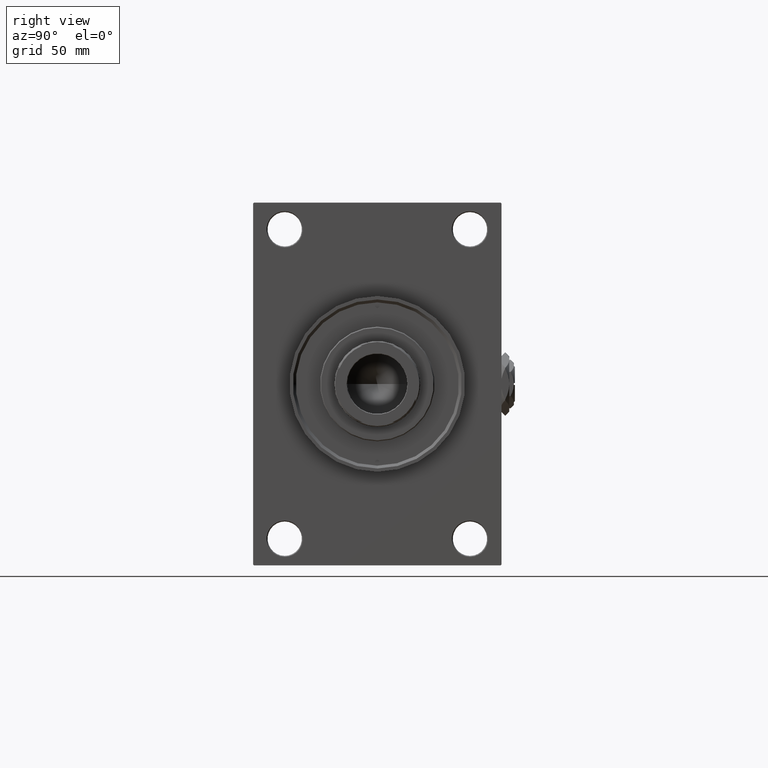
[diagram: clean part render]
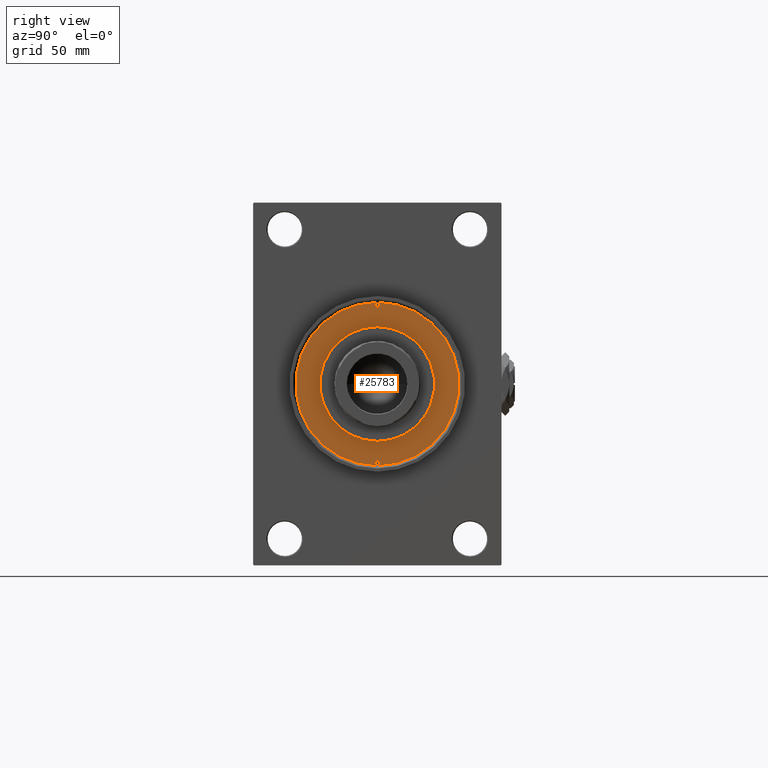
[diagram: same view with one face highlighted and labeled with its STEP entity id]
A machine part, right view. The second image highlights one B-rep face of the part: STEP entity #25783.
In plain terms, the highlighted planar face has unit normal (1, -0, -0).
Its self-contained STEP definition (entity closure, byte-faithful):
#810 = ORIENTED_EDGE ( 'NONE', *, *, #42287, .F. ) ;
#1375 = ORIENTED_EDGE ( 'NONE', *, *, #29425, .F. ) ;
#1879 = CIRCLE ( 'NONE', #13954, 30.00000000000000000 ) ;
#1916 = DIRECTION ( 'NONE',  ( 1.000000000000000000, 0.000000000000000000, 0.000000000000000000 ) ) ;
#2603 = FACE_BOUND ( 'NONE', #36804, .T. ) ;
#2617 = AXIS2_PLACEMENT_3D ( 'NONE', #3005, #10828, #39996 ) ;
#3005 = CARTESIAN_POINT ( 'NONE',  ( 41.00000000000000000, 0.000000000000000000, 43.25999999999999801 ) ) ;
#4447 = EDGE_CURVE ( 'NONE', #15774, #10108, #9701, .T. ) ;
#5132 = DIRECTION ( 'NONE',  ( 1.000000000000000000, 0.000000000000000000, 0.000000000000000000 ) ) ;
#6125 = DIRECTION ( 'NONE',  ( 1.000000000000000000, 0.000000000000000000, -0.000000000000000000 ) ) ;
#6226 = ORIENTED_EDGE ( 'NONE', *, *, #28003, .F. ) ;
#6897 = AXIS2_PLACEMENT_3D ( 'NONE', #49161, #32743, #1916 ) ;
#6969 = CIRCLE ( 'NONE', #40076, 42.75000000000000000 ) ;
#7101 = CARTESIAN_POINT ( 'NONE',  ( -39.75000000000000000, 0.000000000000000000, 43.25999999999999801 ) ) ;
#8148 = VERTEX_POINT ( 'NONE', #11557 ) ;
#8166 = ORIENTED_EDGE ( 'NONE', *, *, #45168, .T. ) ;
#8400 = EDGE_CURVE ( 'NONE', #11291, #8148, #27604, .T. ) ;
#8535 = AXIS2_PLACEMENT_3D ( 'NONE', #35163, #43751, #47544 ) ;
#9701 = CIRCLE ( 'NONE', #13731, 1.250000000000001110 ) ;
#9909 = DIRECTION ( 'NONE',  ( 1.000000000000000000, 0.000000000000000000, 0.000000000000000000 ) ) ;
#10108 = VERTEX_POINT ( 'NONE', #14437 ) ;
#10828 = DIRECTION ( 'NONE',  ( -0.000000000000000000, -0.000000000000000000, 1.000000000000000000 ) ) ;
#10871 = CARTESIAN_POINT ( 'NONE',  ( 30.00000000000000000, 3.673940397442059178E-15, 43.25999999999999801 ) ) ;
#11291 = VERTEX_POINT ( 'NONE', #48888 ) ;
#11557 = CARTESIAN_POINT ( 'NONE',  ( 39.75000000000000000, 1.530808498934193050E-16, 43.25999999999999801 ) ) ;
#11711 = DIRECTION ( 'NONE',  ( -0.000000000000000000, -0.000000000000000000, 1.000000000000000000 ) ) ;
#13345 = CIRCLE ( 'NONE', #6897, 30.00000000000000000 ) ;
#13696 = FACE_BOUND ( 'NONE', #45597, .T. ) ;
#13731 = AXIS2_PLACEMENT_3D ( 'NONE', #46722, #38628, #15368 ) ;
#13954 = AXIS2_PLACEMENT_3D ( 'NONE', #29390, #45080, #9909 ) ;
#14246 = DIRECTION ( 'NONE',  ( 0.000000000000000000, 0.000000000000000000, 1.000000000000000000 ) ) ;
#14437 = CARTESIAN_POINT ( 'NONE',  ( -42.25000000000000000, 1.530808498934193050E-16, 43.25999999999999801 ) ) ;
#15368 = DIRECTION ( 'NONE',  ( 1.000000000000000000, 0.000000000000000000, 0.000000000000000000 ) ) ;
#15774 = VERTEX_POINT ( 'NONE', #7101 ) ;
#17586 = ORIENTED_EDGE ( 'NONE', *, *, #4447, .F. ) ;
#18129 = EDGE_LOOP ( 'NONE', ( #36146, #8166 ) ) ;
#18539 = CARTESIAN_POINT ( 'NONE',  ( 0.000000000000000000, 0.000000000000000000, 43.25999999999999801 ) ) ;
#22049 = DIRECTION ( 'NONE',  ( 0.000000000000000000, 0.000000000000000000, 1.000000000000000000 ) ) ;
#22099 = VERTEX_POINT ( 'NONE', #46871 ) ;
#23120 = CARTESIAN_POINT ( 'NONE',  ( 41.00000000000000000, 0.000000000000000000, 43.25999999999999801 ) ) ;
#24402 = CIRCLE ( 'NONE', #2617, 1.250000000000001110 ) ;
#25783 = ADVANCED_FACE ( 'NONE', ( #2603, #13696, #29139, #45083 ), #49379, .T. ) ;
#26190 = EDGE_LOOP ( 'NONE', ( #42333, #810 ) ) ;
#26326 = CIRCLE ( 'NONE', #8535, 42.75000000000000000 ) ;
#27604 = CIRCLE ( 'NONE', #42176, 1.250000000000001110 ) ;
#28003 = EDGE_CURVE ( 'NONE', #8148, #11291, #24402, .T. ) ;
#28134 = CARTESIAN_POINT ( 'NONE',  ( -41.00000000000000000, 0.000000000000000000, 43.25999999999999801 ) ) ;
#29139 = FACE_BOUND ( 'NONE', #26190, .T. ) ;
#29390 = CARTESIAN_POINT ( 'NONE',  ( 0.000000000000000000, 0.000000000000000000, 43.25999999999999801 ) ) ;
#29425 = EDGE_CURVE ( 'NONE', #10108, #15774, #36432, .T. ) ;
#30158 = CARTESIAN_POINT ( 'NONE',  ( 0.000000000000000000, 0.000000000000000000, 43.25999999999999801 ) ) ;
#31227 = DIRECTION ( 'NONE',  ( 1.000000000000000000, 0.000000000000000000, 0.000000000000000000 ) ) ;
#32743 = DIRECTION ( 'NONE',  ( 0.000000000000000000, 0.000000000000000000, 1.000000000000000000 ) ) ;
#33857 = EDGE_CURVE ( 'NONE', #22099, #39108, #1879, .T. ) ;
#35163 = CARTESIAN_POINT ( 'NONE',  ( 0.000000000000000000, 0.000000000000000000, 43.25999999999999801 ) ) ;
#36146 = ORIENTED_EDGE ( 'NONE', *, *, #42865, .T. ) ;
#36432 = CIRCLE ( 'NONE', #38055, 1.250000000000001110 ) ;
#36804 = EDGE_LOOP ( 'NONE', ( #17586, #1375 ) ) ;
#38055 = AXIS2_PLACEMENT_3D ( 'NONE', #28134, #11711, #5132 ) ;
#38628 = DIRECTION ( 'NONE',  ( -0.000000000000000000, -0.000000000000000000, 1.000000000000000000 ) ) ;
#39108 = VERTEX_POINT ( 'NONE', #10871 ) ;
#39996 = DIRECTION ( 'NONE',  ( 1.000000000000000000, 0.000000000000000000, 0.000000000000000000 ) ) ;
#40076 = AXIS2_PLACEMENT_3D ( 'NONE', #18539, #14246, #48655 ) ;
#42084 = CARTESIAN_POINT ( 'NONE',  ( 42.75000000000000000, 5.235365066354935472E-15, 43.25999999999999801 ) ) ;
#42114 = DIRECTION ( 'NONE',  ( -0.000000000000000000, -0.000000000000000000, 1.000000000000000000 ) ) ;
#42176 = AXIS2_PLACEMENT_3D ( 'NONE', #23120, #42114, #31227 ) ;
#42287 = EDGE_CURVE ( 'NONE', #39108, #22099, #13345, .T. ) ;
#42333 = ORIENTED_EDGE ( 'NONE', *, *, #33857, .F. ) ;
#42641 = VERTEX_POINT ( 'NONE', #45062 ) ;
#42865 = EDGE_CURVE ( 'NONE', #42641, #46571, #26326, .T. ) ;
#43751 = DIRECTION ( 'NONE',  ( 0.000000000000000000, 0.000000000000000000, 1.000000000000000000 ) ) ;
#44532 = AXIS2_PLACEMENT_3D ( 'NONE', #30158, #22049, #6125 ) ;
#45062 = CARTESIAN_POINT ( 'NONE',  ( -42.75000000000000000, 0.000000000000000000, 43.25999999999999801 ) ) ;
#45080 = DIRECTION ( 'NONE',  ( 0.000000000000000000, 0.000000000000000000, 1.000000000000000000 ) ) ;
#45083 = FACE_OUTER_BOUND ( 'NONE', #18129, .T. ) ;
#45168 = EDGE_CURVE ( 'NONE', #46571, #42641, #6969, .T. ) ;
#45597 = EDGE_LOOP ( 'NONE', ( #45789, #6226 ) ) ;
#45789 = ORIENTED_EDGE ( 'NONE', *, *, #8400, .F. ) ;
#46571 = VERTEX_POINT ( 'NONE', #42084 ) ;
#46722 = CARTESIAN_POINT ( 'NONE',  ( -41.00000000000000000, 0.000000000000000000, 43.25999999999999801 ) ) ;
#46871 = CARTESIAN_POINT ( 'NONE',  ( -30.00000000000000000, 0.000000000000000000, 43.25999999999999801 ) ) ;
#47544 = DIRECTION ( 'NONE',  ( 1.000000000000000000, 0.000000000000000000, 0.000000000000000000 ) ) ;
#48655 = DIRECTION ( 'NONE',  ( 1.000000000000000000, 0.000000000000000000, 0.000000000000000000 ) ) ;
#48888 = CARTESIAN_POINT ( 'NONE',  ( 42.25000000000000000, 0.000000000000000000, 43.25999999999999801 ) ) ;
#49161 = CARTESIAN_POINT ( 'NONE',  ( 0.000000000000000000, 0.000000000000000000, 43.25999999999999801 ) ) ;
#49379 = PLANE ( 'NONE',  #44532 ) ;